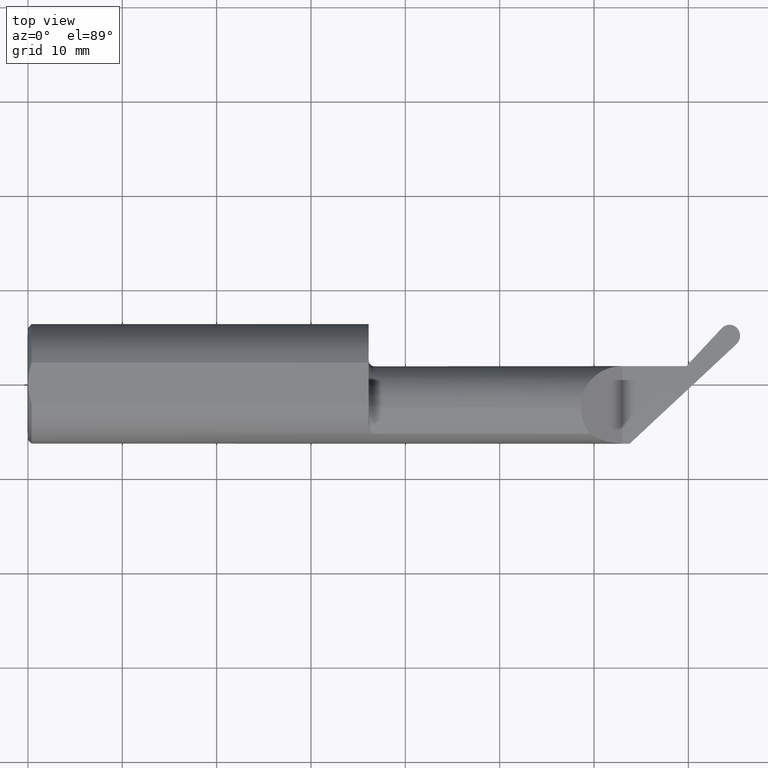
[diagram: clean part render]
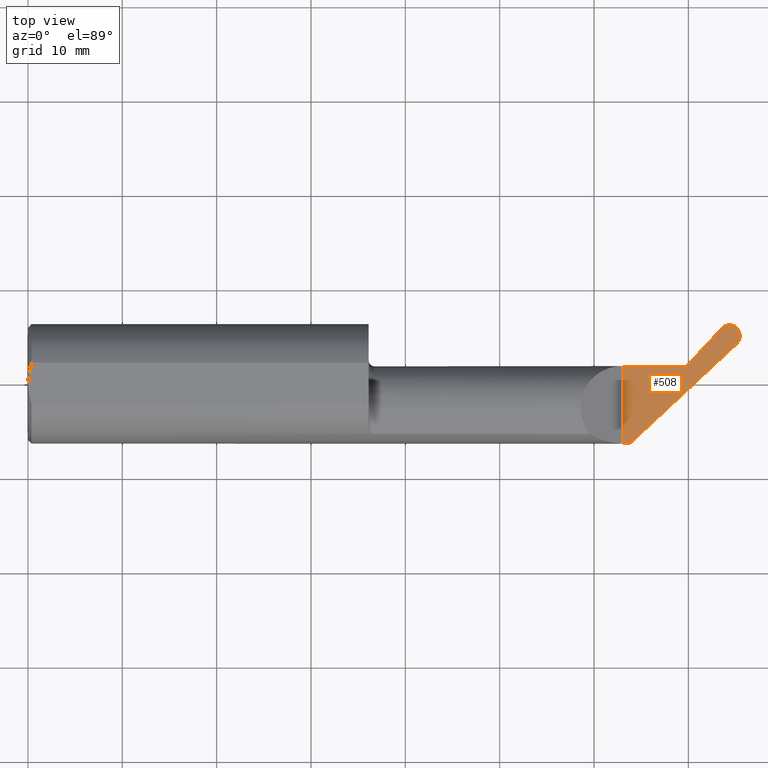
[diagram: same view with one face highlighted and labeled with its STEP entity id]
A machine part, top view. The second image highlights one B-rep face of the part: STEP entity #508.
In plain terms, the highlighted planar face has unit normal (-0, 0, -1).
Its self-contained STEP definition (entity closure, byte-faithful):
#4 = B_SPLINE_CURVE_WITH_KNOTS ( 'NONE', 3,
 ( #388, #136, #638, #384, #79, #328, #574, #13, #649, #287, #474, #721, #282, #151, #730, #802, #156, #164, #470 ),
 .UNSPECIFIED., .F., .F.,
 ( 4, 2, 1, 2, 2, 2, 2, 2, 2, 4 ),
 ( 0.000000000000000000, 0.2499999999999941158, 0.3749999999999911737, 0.4374999999999911737, 0.4999999999999912292, 0.6249999999999907851, 0.7499999999999903411, 0.8124999999999901190, 0.8749999999999897859, 1.000000000000000000 ),
 .UNSPECIFIED. ) ;
#13 = CARTESIAN_POINT ( 'NONE',  ( 2.962147998355271206, 0.2298195036112811729, -5.549066237130534971E-17 ) ) ;
#29 = CARTESIAN_POINT ( 'NONE',  ( 2.747209855509363141, 0.07415000000000039615, 1.912293595564984056E-15 ) ) ;
#34 = VECTOR ( 'NONE', #250, 39.37007874015748143 ) ;
#50 = VERTEX_POINT ( 'NONE', #445 ) ;
#69 = CARTESIAN_POINT ( 'NONE',  ( 2.480000000000000426, 0.07415000000000021574, -5.549066237130534971E-17 ) ) ;
#72 = EDGE_CURVE ( 'NONE', #50, #642, #4, .T. ) ;
#79 = CARTESIAN_POINT ( 'NONE',  ( 2.970764410099808295, 0.2139681964824744209, -5.549066237130534971E-17 ) ) ;
#89 = EDGE_CURVE ( 'NONE', #795, #475, #537, .T. ) ;
#101 = DIRECTION ( 'NONE',  ( -0.000000000000000000, 1.000000000000000000, -0.000000000000000000 ) ) ;
#136 = CARTESIAN_POINT ( 'NONE',  ( 2.965952434464957932, 0.1747368823657588777, -5.549066237130536820E-17 ) ) ;
#151 = CARTESIAN_POINT ( 'NONE',  ( 2.921874253656308706, 0.2469210718378983260, -5.549066237130534971E-17 ) ) ;
#156 = CARTESIAN_POINT ( 'NONE',  ( 2.904555535937459965, 0.2410871652575488633, -5.549066237130534971E-17 ) ) ;
#159 = CARTESIAN_POINT ( 'NONE',  ( 2.895332127941881772, 0.2329916902143804036, -5.549066237130534971E-17 ) ) ;
#164 = CARTESIAN_POINT ( 'NONE',  ( 2.899611671649599653, 0.2375721085925909526, -5.549066237130535587E-17 ) ) ;
#166 = VECTOR ( 'NONE', #628, 39.37007874015748143 ) ;
#200 = LINE ( 'NONE', #691, #166 ) ;
#216 = CARTESIAN_POINT ( 'NONE',  ( 2.480000000000000426, 0.2500000000000000000, -5.549066237130534971E-17 ) ) ;
#224 = ORIENTED_EDGE ( 'NONE', *, *, #293, .F. ) ;
#250 = DIRECTION ( 'NONE',  ( 0.6819983600625076914, 0.7313537016191619111, 0.000000000000000000 ) ) ;
#258 = AXIS2_PLACEMENT_3D ( 'NONE', #216, #286, #534 ) ;
#282 = CARTESIAN_POINT ( 'NONE',  ( 2.924897144155737649, 0.2472028725232965629, -5.549066237130537436E-17 ) ) ;
#286 = DIRECTION ( 'NONE',  ( -0.000000000000000000, 0.000000000000000000, -1.000000000000000000 ) ) ;
#287 = CARTESIAN_POINT ( 'NONE',  ( 2.951246278421888025, 0.2404503415977134739, -5.549066237130534971E-17 ) ) ;
#293 = EDGE_CURVE ( 'NONE', #818, #642, #825, .T. ) ;
#328 = CARTESIAN_POINT ( 'NONE',  ( 2.967042707307479876, 0.2220795025910841658, -5.549066237130534971E-17 ) ) ;
#329 = CARTESIAN_POINT ( 'NONE',  ( 2.480000000000000426, -0.2498499999999999888, -5.549066237130534971E-17 ) ) ;
#375 = VECTOR ( 'NONE', #718, 39.37007874015748143 ) ;
#384 = CARTESIAN_POINT ( 'NONE',  ( 2.971947113069790092, 0.2049067688294958500, -5.549066237130534971E-17 ) ) ;
#388 = CARTESIAN_POINT ( 'NONE',  ( 2.956681397116282195, 0.1660746854946847650, 0.000000000000000000 ) ) ;
#418 = ORIENTED_EDGE ( 'NONE', *, *, #704, .F. ) ;
#445 = CARTESIAN_POINT ( 'NONE',  ( 2.956681397116282195, 0.1660746854946847650, 0.000000000000000000 ) ) ;
#455 = LINE ( 'NONE', #646, #661 ) ;
#470 = CARTESIAN_POINT ( 'NONE',  ( 2.895332127941881772, 0.2329916902143804036, -5.549066237130534971E-17 ) ) ;
#472 = EDGE_CURVE ( 'NONE', #475, #818, #200, .T. ) ;
#474 = CARTESIAN_POINT ( 'NONE',  ( 2.940049984818118745, 0.2457218832932364649, -5.549066237130536203E-17 ) ) ;
#475 = VERTEX_POINT ( 'NONE', #69 ) ;
#501 = ORIENTED_EDGE ( 'NONE', *, *, #89, .F. ) ;
#508 = ADVANCED_FACE ( 'NONE', ( #524 ), #589, .F. ) ;
#524 = FACE_OUTER_BOUND ( 'NONE', #700, .T. ) ;
#531 = CARTESIAN_POINT ( 'NONE',  ( 2.480000000000000426, 0.2500000000000000000, -5.549066237130534971E-17 ) ) ;
#534 = DIRECTION ( 'NONE',  ( -1.000000000000000000, 0.000000000000000000, 0.000000000000000000 ) ) ;
#537 = LINE ( 'NONE', #531, #791 ) ;
#574 = CARTESIAN_POINT ( 'NONE',  ( 2.963997349929852199, 0.2272759018758531979, -5.549066237130533738E-17 ) ) ;
#578 = CARTESIAN_POINT ( 'NONE',  ( 3.000000000000000444, -0.2498499999999999333, -5.549066237130534971E-17 ) ) ;
#583 = DIRECTION ( 'NONE',  ( -0.7313537016191662410, -0.6819983600625029174, 0.000000000000000000 ) ) ;
#589 = PLANE ( 'NONE',  #258 ) ;
#600 = VERTEX_POINT ( 'NONE', #714 ) ;
#621 = CARTESIAN_POINT ( 'NONE',  ( 2.584952230521406324, -0.09985000000000000819, -5.549066237130534971E-17 ) ) ;
#628 = DIRECTION ( 'NONE',  ( 1.000000000000000000, 0.000000000000000000, 0.000000000000000000 ) ) ;
#634 = ORIENTED_EDGE ( 'NONE', *, *, #72, .T. ) ;
#635 = LINE ( 'NONE', #578, #375 ) ;
#638 = CARTESIAN_POINT ( 'NONE',  ( 2.970927185913292412, 0.1855170847977140602, -5.549066237130535587E-17 ) ) ;
#642 = VERTEX_POINT ( 'NONE', #159 ) ;
#646 = CARTESIAN_POINT ( 'NONE',  ( 2.510656778664931199, -0.2498499999999999888, 0.000000000000000000 ) ) ;
#649 = CARTESIAN_POINT ( 'NONE',  ( 2.956020981123783198, 0.2368277747149356849, -5.549066237130538668E-17 ) ) ;
#654 = ORIENTED_EDGE ( 'NONE', *, *, #677, .F. ) ;
#661 = VECTOR ( 'NONE', #583, 39.37007874015748854 ) ;
#677 = EDGE_CURVE ( 'NONE', #50, #600, #455, .T. ) ;
#691 = CARTESIAN_POINT ( 'NONE',  ( 1.421699999999999964, 0.07415000000000020186, -5.549066237130534971E-17 ) ) ;
#700 = EDGE_LOOP ( 'NONE', ( #654, #634, #224, #743, #501, #418 ) ) ;
#704 = EDGE_CURVE ( 'NONE', #600, #795, #635, .T. ) ;
#714 = CARTESIAN_POINT ( 'NONE',  ( 2.510656778664931199, -0.2498500000000000998, 8.963876229210863994E-17 ) ) ;
#718 = DIRECTION ( 'NONE',  ( -1.000000000000000000, -0.000000000000000000, -0.000000000000000000 ) ) ;
#721 = CARTESIAN_POINT ( 'NONE',  ( 2.934129113859825999, 0.2470809850564694155, -5.549066237130534971E-17 ) ) ;
#730 = CARTESIAN_POINT ( 'NONE',  ( 2.915937338127985612, 0.2457126107850874652, -5.549066237130533738E-17 ) ) ;
#743 = ORIENTED_EDGE ( 'NONE', *, *, #472, .F. ) ;
#791 = VECTOR ( 'NONE', #101, 39.37007874015748143 ) ;
#795 = VERTEX_POINT ( 'NONE', #329 ) ;
#802 = CARTESIAN_POINT ( 'NONE',  ( 2.912967813239468740, 0.2447617076851082152, -5.549066237130534971E-17 ) ) ;
#818 = VERTEX_POINT ( 'NONE', #29 ) ;
#825 = LINE ( 'NONE', #621, #34 ) ;